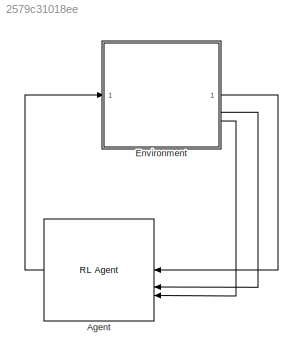
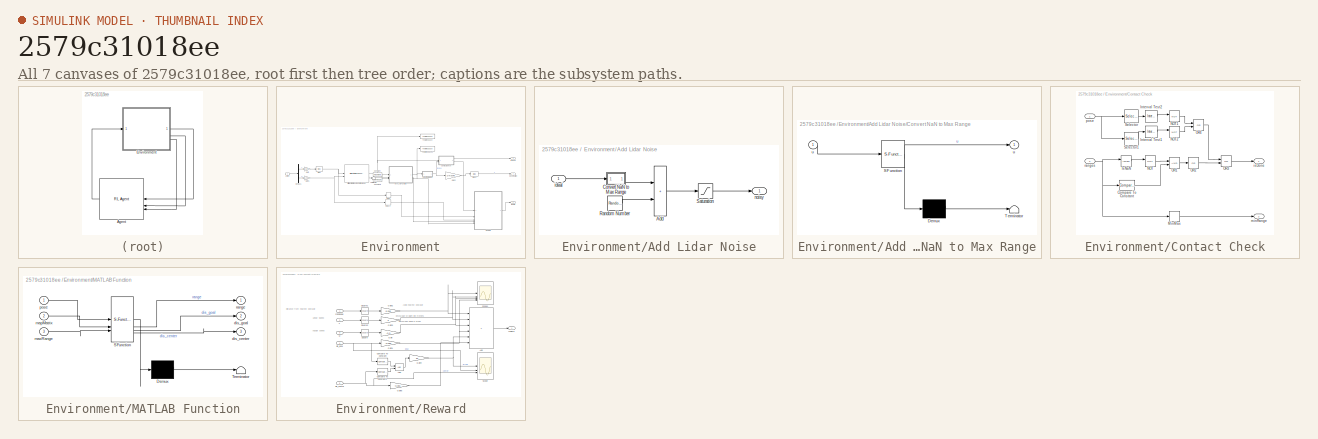
[diagram: thumbnail index - all 7 canvases of the model, root first then tree order]
MODEL slx_2579c31018ee
KIND model
CONFIG AbsTol = auto
CONFIG EnableMultiTasking = off
CONFIG FixedStep = auto
CONFIG MaxStep = auto
CONFIG MinStep = auto
CONFIG RelTol = 1e-3
CONFIG SampleTimeConstraint = Unconstrained
CONFIG SolverName = VariableStepAuto
CONFIG StartTime = 0.0
CONFIG StopTime = 200
BLOCK [Reference] Agent  REF=rllib/RL Agent
  NameLocation = top
  SourceBlock = rllib/RL Agent
  SourceType = RL Agent
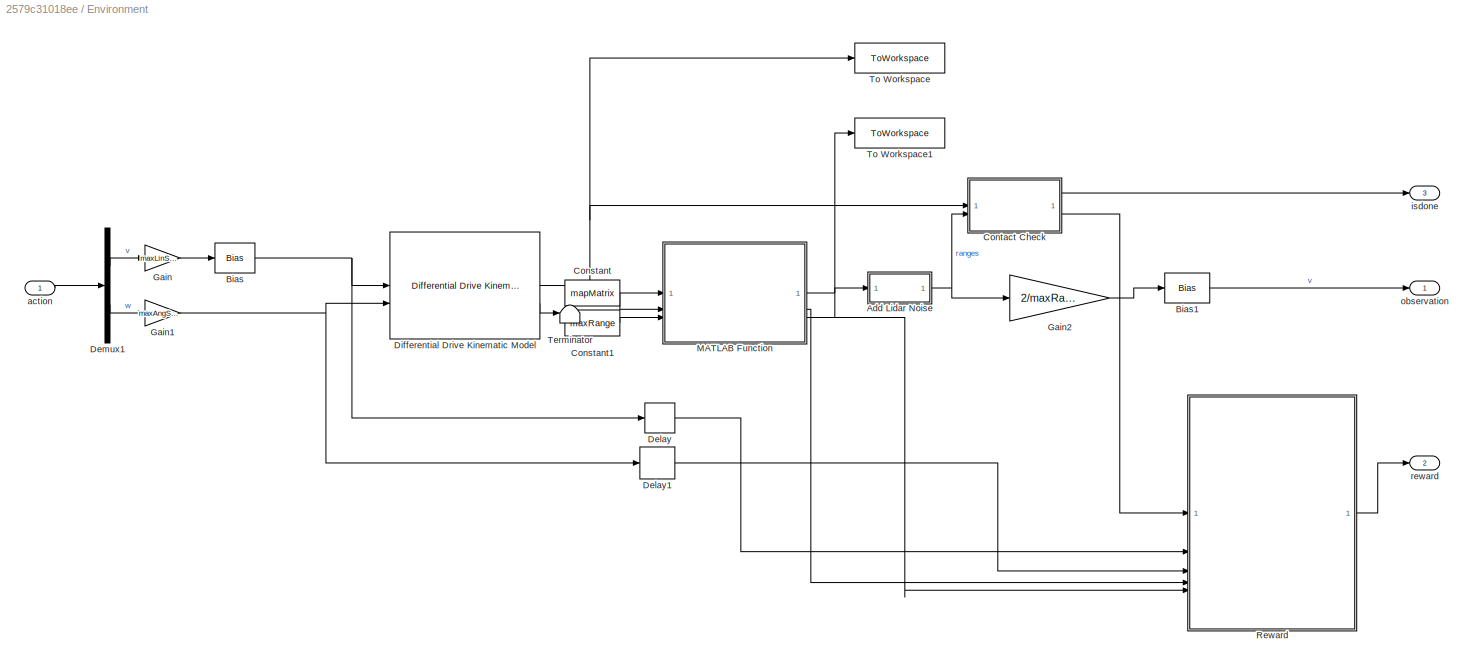
BLOCK [SubSystem] Environment
BLOCK [SubSystem] Environment/Add Lidar Noise
BLOCK [Sum] Environment/Add Lidar Noise/Add
  IconShape = rectangular
BLOCK [SubSystem] Environment/Add Lidar Noise/Convert NaN to Max Range
  ErrorFcn = Stateflow.Translate.translate
  PermitHierarchicalResolution = ExplicitOnly
  SFBlockType = MATLAB Function
  TreatAsAtomicUnit = on
BLOCK [Demux] Environment/Add Lidar Noise/Convert NaN to Max Range/ Demux 
  Outputs = 1
BLOCK [S-Function] Environment/Add Lidar Noise/Convert NaN to Max Range/ SFunction 
  EnableBusSupport = off
  FunctionName = sf_sfun
  Parameters = maxRange
  PortCounts = [1 2]
  SFcnIsStateOwnerBlock = off
  SFunctionDeploymentMode = off
  Tag = Stateflow S-Function 2
BLOCK [Terminator] Environment/Add Lidar Noise/Convert NaN to Max Range/ Terminator 
BLOCK [Outport] Environment/Add Lidar Noise/Convert NaN to Max Range/u
  VectorParamsAs1DForOutWhenUnconnected = off
BLOCK [Inport] Environment/Add Lidar Noise/Convert NaN to Max Range/u 
BLOCK [RandomNumber] Environment/Add Lidar Noise/Random Number
  SampleTime = sampleTime
  Seed = lidarNoiseSeeds
  Variance = lidarNoiseVariance
BLOCK [Saturate] Environment/Add Lidar Noise/Saturation
  LowerLimit = 0
  UpperLimit = inf
BLOCK [Inport] Environment/Add Lidar Noise/ideal
BLOCK [Outport] Environment/Add Lidar Noise/noisy
BLOCK [Bias] Environment/Bias
  Bias = maxLinSpeed/2
  SaturateOnIntegerOverflow = off
BLOCK [Bias] Environment/Bias1
  Bias = -1
  NameLocation = top
  SaturateOnIntegerOverflow = off
BLOCK [Constant] Environment/Constant
  Value = mapMatrix
BLOCK [Constant] Environment/Constant1
  Value = maxRange
BLOCK [SubSystem] Environment/Contact Check
BLOCK [Reference] Environment/Contact Check/Compare To Constant  REF=simulink/Logic and Bit
Operations/Compare
To Constant
  SourceBlock = simulink/Logic and Bit\nOperations/Compare\nTo Constant
  SourceType = Compare To Constant
BLOCK [Reference] Environment/Contact Check/Interval Test1  REF=simulink/Logic and Bit
Operations/Interval Test
  SourceBlock = simulink/Logic and Bit\nOperations/Interval Test
  SourceType = Interval Test
BLOCK [Reference] Environment/Contact Check/Interval Test2  REF=simulink/Logic and Bit
Operations/Interval Test
  SourceBlock = simulink/Logic and Bit\nOperations/Interval Test
  SourceType = Interval Test
BLOCK [RelationalOperator] Environment/Contact Check/IsNaN
  InputSameDT = off
  Operator = isNaN
  OutDataTypeStr = boolean
  RndMeth = Simplest
BLOCK [MinMax] Environment/Contact Check/MinMax
BLOCK [Logic] Environment/Contact Check/NOT
  AllPortsSameDT = off
  IconShape = distinctive
  Operator = NOT
  OutDataTypeStr = boolean
BLOCK [Logic] Environment/Contact Check/NOT1
  AllPortsSameDT = off
  IconShape = distinctive
  Operator = NOT
  OutDataTypeStr = boolean
BLOCK [Logic] Environment/Contact Check/NOT2
  AllPortsSameDT = off
  IconShape = distinctive
  Operator = NOT
  OutDataTypeStr = boolean
BLOCK [Logic] Environment/Contact Check/OR1
  AllPortsSameDT = off
  IconShape = distinctive
  OutDataTypeStr = boolean
BLOCK [Logic] Environment/Contact Check/OR2
  AllPortsSameDT = off
  IconShape = distinctive
  Inputs = 1
  Operator = OR
  OutDataTypeStr = boolean
BLOCK [Logic] Environment/Contact Check/OR3
  AllPortsSameDT = off
  IconShape = distinctive
  Operator = OR
  OutDataTypeStr = boolean
BLOCK [Logic] Environment/Contact Check/OR4
  AllPortsSameDT = off
  IconShape = distinctive
  Operator = OR
  OutDataTypeStr = boolean
BLOCK [Selector] Environment/Contact Check/Selector
  IndexOptions = Index vector (dialog)
  Indices = 1
  InputPortWidth = 3
  OutputSizes = 1
BLOCK [Selector] Environment/Contact Check/Selector1
  IndexOptions = Index vector (dialog)
  Indices = 2
  InputPortWidth = 3
  OutputSizes = 1
BLOCK [Outport] Environment/Contact Check/isDone
  VectorParamsAs1DForOutWhenUnconnected = off
BLOCK [Outport] Environment/Contact Check/minRange
  Port = 2
  VectorParamsAs1DForOutWhenUnconnected = off
BLOCK [Inport] Environment/Contact Check/pose
BLOCK [Inport] Environment/Contact Check/ranges
  Port = 2
BLOCK [Delay] Environment/Delay
  DelayLength = 1
  InitialCondition = 0
  InputPortMap = u0
  UseCircularBuffer = on
  UserDataPersistent = on
BLOCK [Delay] Environment/Delay1
  DelayLength = 1
  InitialCondition = 0
  InputPortMap = u0
  UseCircularBuffer = on
  UserDataPersistent = on
BLOCK [Demux] Environment/Demux1
  Outputs = 2
BLOCK [Reference] Environment/Differential Drive Kinematic Model  REF=robotmobilelib/Differential Drive Kinematic Model
  SourceBlock = robotmobilelib/Differential Drive Kinematic Model
  SourceType = Differential Drive Kinematic Model
BLOCK [Gain] Environment/Gain
  Gain = maxLinSpeed/2
BLOCK [Gain] Environment/Gain1
  Gain = maxAngSpeed
BLOCK [Gain] Environment/Gain2
  Gain = 2/maxRange
  NameLocation = top
BLOCK [SubSystem] Environment/MATLAB Function
  ErrorFcn = Stateflow.Translate.translate
  PermitHierarchicalResolution = ExplicitOnly
  SFBlockType = MATLAB Function
  TreatAsAtomicUnit = on
BLOCK [Demux] Environment/MATLAB Function/ Demux 
  Outputs = 1
BLOCK [S-Function] Environment/MATLAB Function/ SFunction 
  EnableBusSupport = off
  FunctionName = sf_sfun
  Parameters = mapScale
  PortCounts = [3 4]
  SFcnIsStateOwnerBlock = off
  SFunctionDeploymentMode = off
  Tag = Stateflow S-Function 1
BLOCK [Terminator] Environment/MATLAB Function/ Terminator 
BLOCK [Outport] Environment/MATLAB Function/dis_center
  Port = 3
BLOCK [Outport] Environment/MATLAB Function/dis_goal
  Port = 2
BLOCK [Inport] Environment/MATLAB Function/mapMatrix
  Port = 2
BLOCK [Inport] Environment/MATLAB Function/maxRange
  Port = 3
BLOCK [Inport] Environment/MATLAB Function/pose
BLOCK [Outport] Environment/MATLAB Function/range
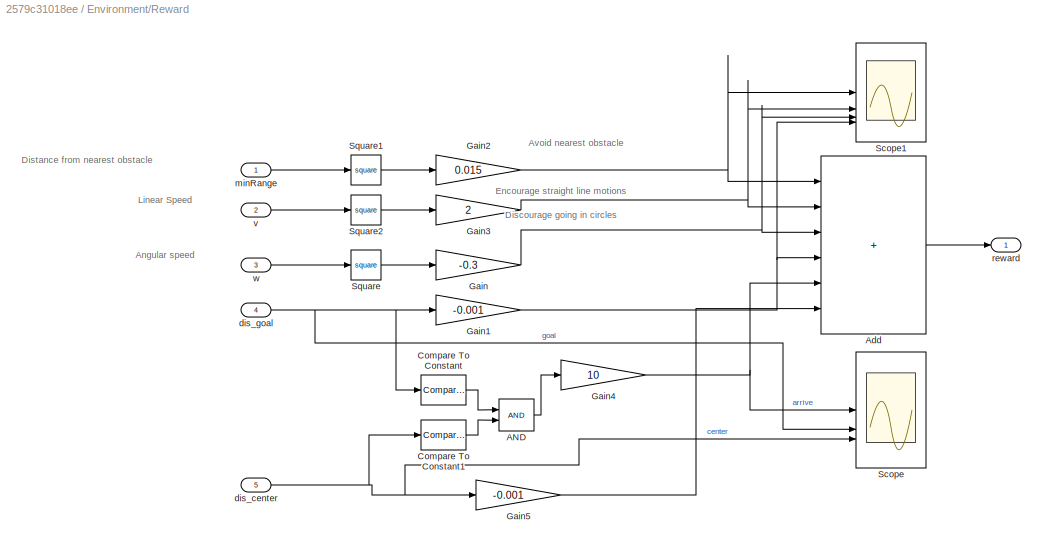
BLOCK [SubSystem] Environment/Reward
BLOCK [Logic] Environment/Reward/AND
  AllPortsSameDT = off
  IconShape = distinctive
  OutDataTypeStr = boolean
BLOCK [Sum] Environment/Reward/Add
  IconShape = rectangular
  Inputs = ++++++
BLOCK [Reference] Environment/Reward/Compare To Constant  REF=simulink/Logic and Bit
Operations/Compare
To Constant
  SourceBlock = simulink/Logic and Bit\nOperations/Compare\nTo Constant
  SourceType = Compare To Constant
BLOCK [Reference] Environment/Reward/Compare To Constant1  REF=simulink/Logic and Bit
Operations/Compare
To Constant
  SourceBlock = simulink/Logic and Bit\nOperations/Compare\nTo Constant
  SourceType = Compare To Constant
BLOCK [Gain] Environment/Reward/Gain
  Gain = -0.3
BLOCK [Gain] Environment/Reward/Gain1
  Gain = -0.001
BLOCK [Gain] Environment/Reward/Gain2
  Gain = 0.015
BLOCK [Gain] Environment/Reward/Gain3
  Gain = 2
BLOCK [Gain] Environment/Reward/Gain4
  Gain = 10
BLOCK [Gain] Environment/Reward/Gain5
  Gain = -0.001
BLOCK [Scope] Environment/Reward/Scope
  ActiveDisplayYMaximum = 27.215885928104928
  ActiveDisplayYMinimum = -4.9429733529443522
  Floating = off
  GraphicalSettings = {"Style":{"BackgroundColor":[0.12941176470588237,0.12941176470588237,0.12941176470588237],"AxesColor":[0.07058823529411765,0.07058823529411765,0.07058823529411765],"LabelsColor":[0.8509803921568627,0.8509803921568627,0.8509803921568627],"PreserveColors":false,"Visible":[true,true,true],"LineStyle":["-","-","-"],"LineWidth":[1.5,1.5,1.5],"BarWidth":[0.9,0.9,0.9],"LineColor":["auto","auto","auto"],"...<+2213ch>
  MultipleDisplayCache = [{"MaxYLimMag":27.215885928104928,"MaxYLimReal":27.215885928104928,"MinYLimMag":0,"MinYLimReal":-4.9429733529443522,"PlotAsMagnitudePhase":false,"ShowGrid":true,"ShowLegend":true,"Title":"%<SignalLabel>","YLabel":""}]
  NumInputPorts = 3
  ScopeFrameLocation = window
  ShowLegend = on
  Visible = on
  WasSavedAsWebScope = on
  WindowPosition = [2029.000000,785.000000,560.000000,293.000000,]
BLOCK [Scope] Environment/Reward/Scope1
  ActiveDisplayYMaximum = 1.8126297328060395
  ActiveDisplayYMinimum = -0.23140330364511547
  DataLoggingVariableName = ScopeData1
  Floating = off
  GraphicalSettings = {"Style":{"BackgroundColor":[0.12941176470588237,0.12941176470588237,0.12941176470588237],"AxesColor":[0.07058823529411765,0.07058823529411765,0.07058823529411765],"LabelsColor":[0.8509803921568627,0.8509803921568627,0.8509803921568627],"PreserveColors":false,"Visible":[true,true,true,true],"LineStyle":["-","-","-","-"],"LineWidth":[1.5,1.5,1.5,1.5],"BarWidth":[0.9,0.9,0.9,0.9],"LineColor":["auto"...<+2321ch>
  MultipleDisplayCache = [{"MaxYLimMag":1.8126297328060395,"MaxYLimReal":1.8126297328060395,"MinYLimMag":0,"MinYLimReal":-0.23140330364511547,"PlotAsMagnitudePhase":false,"ShowGrid":true,"ShowLegend":true,"Title":"%<SignalLabel>","YLabel":""}]
  NumInputPorts = 4
  ScopeFrameLocation = window
  ShowLegend = on
  Visible = on
  WasSavedAsWebScope = on
  WindowPosition = [2298.000000,316.000000,560.000000,420.000000,]
BLOCK [Math] Environment/Reward/Square
  Operator = square
  SignedPower = on
BLOCK [Math] Environment/Reward/Square1
  Operator = square
  SignedPower = on
BLOCK [Math] Environment/Reward/Square2
  Operator = square
  SignedPower = on
BLOCK [Inport] Environment/Reward/dis_center
  Port = 5
BLOCK [Inport] Environment/Reward/dis_goal
  Port = 4
BLOCK [Inport] Environment/Reward/minRange
BLOCK [Outport] Environment/Reward/reward
  VectorParamsAs1DForOutWhenUnconnected = off
BLOCK [Inport] Environment/Reward/v
  Port = 2
BLOCK [Inport] Environment/Reward/w
  Port = 3
BLOCK [Terminator] Environment/Terminator
BLOCK [ToWorkspace] Environment/To Workspace
  FixptAsFi = on
  MaxDataPoints = inf
  SampleTime = -1
  Save2DSignal = 2-D array (concatenate along first dimension)
  VariableName = pose
BLOCK [ToWorkspace] Environment/To Workspace1
  FixptAsFi = on
  MaxDataPoints = inf
  SampleTime = -1
  VariableName = range
BLOCK [Inport] Environment/action
BLOCK [Outport] Environment/isdone
  Port = 3
BLOCK [Outport] Environment/observation
BLOCK [Outport] Environment/reward
  Port = 2
ANNOTATION Environment/Reward: Avoid nearest obstacle
ANNOTATION Environment/Reward: Angular speed
ANNOTATION Environment/Reward: Discourage going in circles
ANNOTATION Environment/Reward: Distance from nearest obstacle
ANNOTATION Environment/Reward: Encourage straight line motions
ANNOTATION Environment/Reward: Linear Speed
LINE Agent:1 -> Environment:1
LINE Environment/Add Lidar Noise/Add:1 -> Environment/Add Lidar Noise/Saturation:1
LINE Environment/Add Lidar Noise/Convert NaN to Max Range:1 -> Environment/Add Lidar Noise/Add:1
LINE Environment/Add Lidar Noise/Random Number:1 -> Environment/Add Lidar Noise/Add:2
LINE Environment/Add Lidar Noise/Saturation:1 -> Environment/Add Lidar Noise/noisy:1
LINE Environment/Add Lidar Noise/ideal:1 -> Environment/Add Lidar Noise/Convert NaN to Max Range:1
NET Environment/Add Lidar Noise:1 -> Environment/Contact Check:2, Environment/Gain2:1
LINE Environment/Bias1:1 -> Environment/observation:1
NET Environment/Bias:1 -> Environment/Delay:1, Environment/Differential Drive Kinematic Model:1
LINE Environment/Constant1:1 -> Environment/MATLAB Function:3
LINE Environment/Constant:1 -> Environment/MATLAB Function:2
LINE Environment/Contact Check/Compare To Constant:1 -> Environment/Contact Check/OR1:2
LINE Environment/Contact Check/Interval Test1:1 -> Environment/Contact Check/NOT2:1
LINE Environment/Contact Check/Interval Test2:1 -> Environment/Contact Check/NOT1:1
LINE Environment/Contact Check/IsNaN:1 -> Environment/Contact Check/NOT:1
LINE Environment/Contact Check/MinMax:1 -> Environment/Contact Check/minRange:1
LINE Environment/Contact Check/NOT1:1 -> Environment/Contact Check/OR4:1
LINE Environment/Contact Check/NOT2:1 -> Environment/Contact Check/OR4:2
LINE Environment/Contact Check/NOT:1 -> Environment/Contact Check/OR1:1
LINE Environment/Contact Check/OR1:1 -> Environment/Contact Check/OR2:1
LINE Environment/Contact Check/OR2:1 -> Environment/Contact Check/OR3:2
LINE Environment/Contact Check/OR3:1 -> Environment/Contact Check/isDone:1
LINE Environment/Contact Check/OR4:1 -> Environment/Contact Check/OR3:1
LINE Environment/Contact Check/Selector1:1 -> Environment/Contact Check/Interval Test1:1
LINE Environment/Contact Check/Selector:1 -> Environment/Contact Check/Interval Test2:1
NET Environment/Contact Check/pose:1 -> Environment/Contact Check/Selector1:1, Environment/Contact Check/Selector:1
NET Environment/Contact Check/ranges:1 -> Environment/Contact Check/Compare To Constant:1, Environment/Contact Check/IsNaN:1, Environment/Contact Check/MinMax:1
LINE Environment/Contact Check:1 -> Environment/isdone:1
LINE Environment/Contact Check:2 -> Environment/Reward:1
LINE Environment/Delay1:1 -> Environment/Reward:3
LINE Environment/Delay:1 -> Environment/Reward:2
LINE Environment/Demux1:1 -> Environment/Gain:1
LINE Environment/Demux1:2 -> Environment/Gain1:1
NET Environment/Differential Drive Kinematic Model:1 -> Environment/Contact Check:1, Environment/MATLAB Function:1, Environment/To Workspace:1
LINE Environment/Differential Drive Kinematic Model:2 -> Environment/Terminator:1
NET Environment/Gain1:1 -> Environment/Delay1:1, Environment/Differential Drive Kinematic Model:2
LINE Environment/Gain2:1 -> Environment/Bias1:1
LINE Environment/Gain:1 -> Environment/Bias:1
NET Environment/MATLAB Function:1 -> Environment/Add Lidar Noise:1, Environment/To Workspace1:1
LINE Environment/MATLAB Function:2 -> Environment/Reward:4
LINE Environment/MATLAB Function:3 -> Environment/Reward:5
LINE Environment/Reward/AND:1 -> Environment/Reward/Gain4:1
LINE Environment/Reward/Add:1 -> Environment/Reward/reward:1
LINE Environment/Reward/Compare To Constant1:1 -> Environment/Reward/AND:2
LINE Environment/Reward/Compare To Constant:1 -> Environment/Reward/AND:1
NET Environment/Reward/Gain1:1 -> Environment/Reward/Add:4, Environment/Reward/Scope1:4
NET Environment/Reward/Gain2:1 -> Environment/Reward/Add:1, Environment/Reward/Scope1:1
NET Environment/Reward/Gain3:1 -> Environment/Reward/Add:2, Environment/Reward/Scope1:2
NET Environment/Reward/Gain4:1 -> Environment/Reward/Add:5, Environment/Reward/Scope:1
LINE Environment/Reward/Gain5:1 -> Environment/Reward/Add:6
NET Environment/Reward/Gain:1 -> Environment/Reward/Add:3, Environment/Reward/Scope1:3
LINE Environment/Reward/Square1:1 -> Environment/Reward/Gain2:1
LINE Environment/Reward/Square2:1 -> Environment/Reward/Gain3:1
LINE Environment/Reward/Square:1 -> Environment/Reward/Gain:1
NET Environment/Reward/dis_center:1 -> Environment/Reward/Compare To Constant1:1, Environment/Reward/Gain5:1, Environment/Reward/Scope:3
NET Environment/Reward/dis_goal:1 -> Environment/Reward/Compare To Constant:1, Environment/Reward/Gain1:1, Environment/Reward/Scope:2
LINE Environment/Reward/minRange:1 -> Environment/Reward/Square1:1
LINE Environment/Reward/v:1 -> Environment/Reward/Square2:1
LINE Environment/Reward/w:1 -> Environment/Reward/Square:1
LINE Environment/Reward:1 -> Environment/reward:1
LINE Environment/action:1 -> Environment/Demux1:1
LINE Environment:1 -> Agent:1
LINE Environment:2 -> Agent:2
LINE Environment:3 -> Agent:3
note: NET lines group one-source signal fan-out (src -> all destinations, sorted); 1:1 wires keep LINE
CHART Environment/MATLAB Function states=1 transitions=1
  STATE_LABEL 'eML_blk_kernel()'
  STATE_LABEL 'SCRIPT:\nfunction [range,dis_goal, dis_center] = RangeSensor(pose, mapMatrix, maxRange, mapScale)\n[range,dis_goal, dis_center]=AvoidObstaclesRangeSensor(pose,mapMatrix,maxRange,mapScale);'
CHART Environment/Add Lidar Noise/Convert NaN to Max Range states=1 transitions=1
  STATE_LABEL 'eML_blk_kernel()'
  STATE_LABEL 'SCRIPT:\nfunction u = removeNans(u,maxRange)\n\nu(isnan(u)) = maxRange;'
CHART  states=0 transitions=0
CHART  states=0 transitions=0
